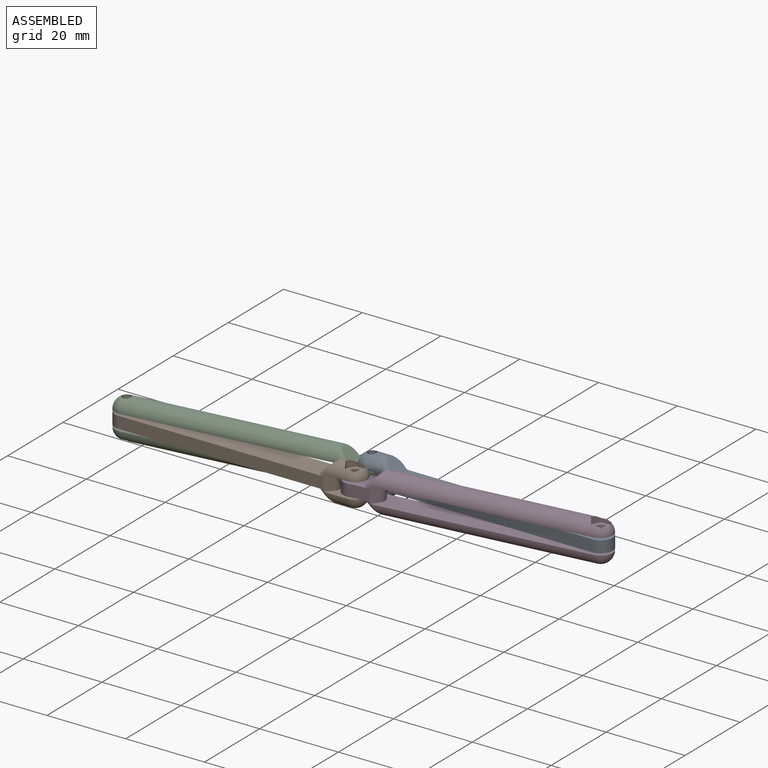
[diagram: assembled view]
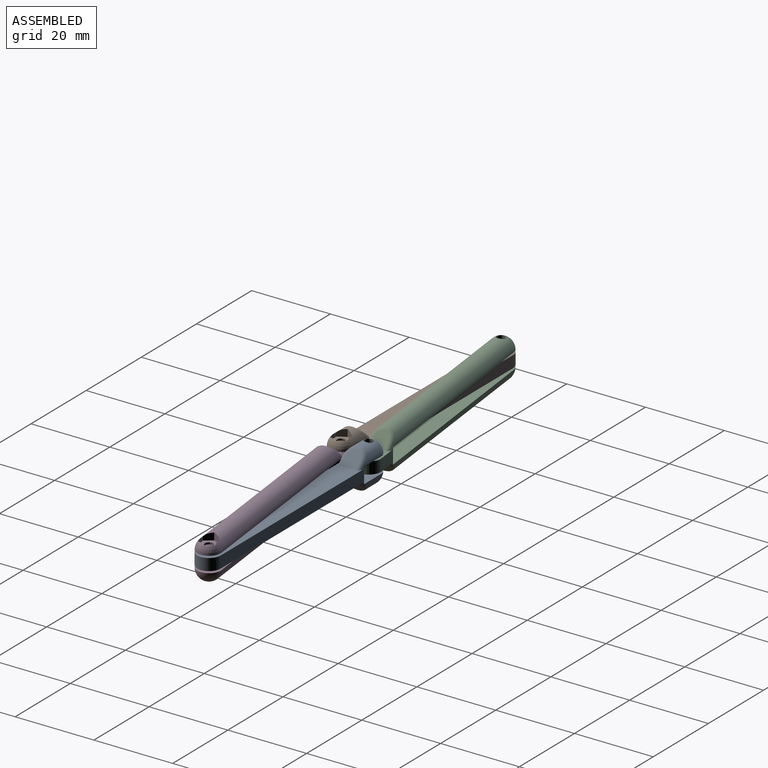
[diagram: assembled view, second angle]
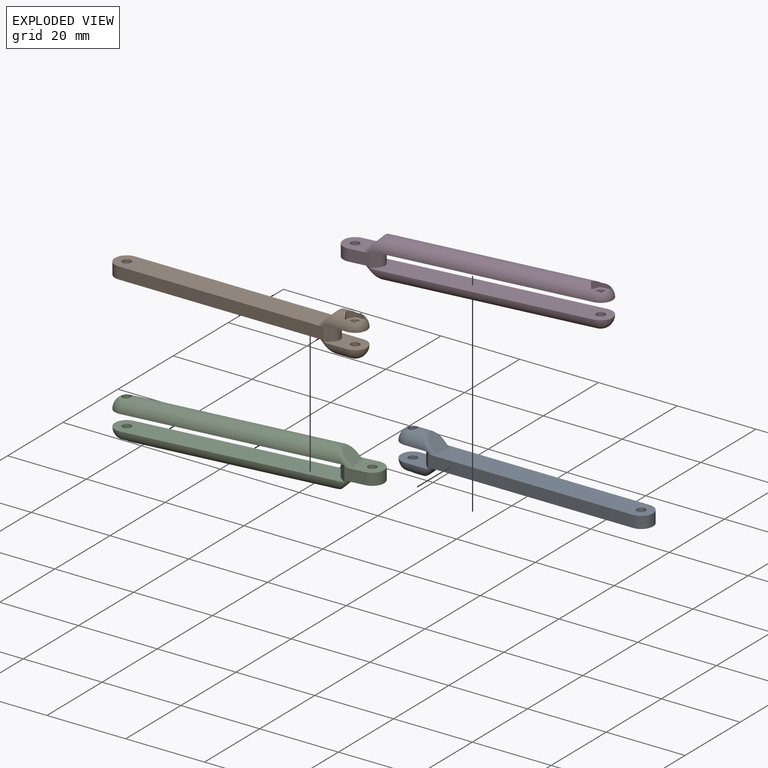
[diagram: exploded view]
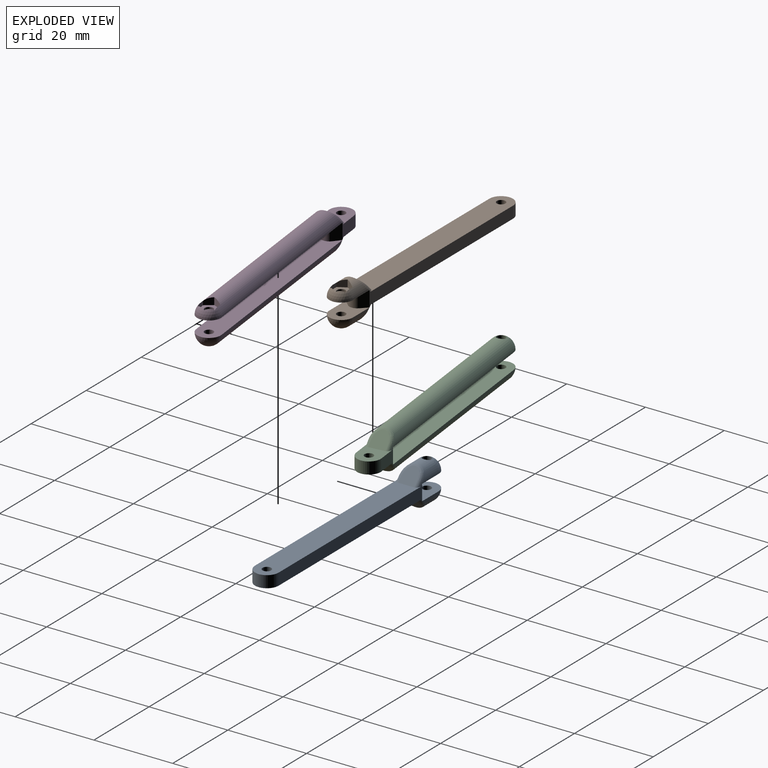
[diagram: exploded view, second angle]
ASSEMBLY  parts=4 mates=4
PART A: 32 faces, bbox 64x6x10 mm
  f0: cylinder r=1.1mm len=2.2mm, axis (0,0,-1), area 8.3mm2, adj f5,f16
  f1: plane 52x3.17mm, normal (0,1,0), area 156mm2, adj f3,f4,f7,f23,f27,f28
  f2: plane 52x3.17mm, normal (0,-1,0), area 156mm2, adj f3,f4,f7,f24,f25,f30
  f3: plane 54.91x6mm, normal (0,0,1), area 313.9mm2, adj f1,f2,f7,f9,f17,f25,f27
  f4: plane 54.91x6mm, normal (0,0,-1), area 313.9mm2, adj f1,f2,f7,f9,f18,f28,f30
  f5: plane 8.97x6mm, normal (0,0,1), area 38.2mm2, adj f0,f19,f20,f23,f24,f28,f30,f31
  f6: plane 8.97x6mm, normal (0,0,-1), area 38.2mm2, adj f8,f21,f22,f23,f24,f25,f27,f31
  f7: cylinder r=3mm len=6mm, axis (0,0,-1), area 28.3mm2, adj f1,f2,f3,f4
  f8: cylinder r=1.1mm len=3mm, axis (0,0,-1), area 19.7mm2, adj f6,f21,f22
  f9: cylinder r=1.1mm len=3mm, axis (0,0,-1), area 20.7mm2, adj f3,f4
  f10: plane 2.34x1.01mm, normal (0,1,0), area 2.2mm2, adj f11,f15,f16,f19,f20
  f11: plane 2.03x1.17mm, normal (0.87,0.5,0), area 2.1mm2, adj f10,f12,f16,f20
  f12: plane 2.03x1.17mm, normal (0.87,-0.5,0), area 2.1mm2, adj f11,f13,f16,f20
  f13: plane 2.34x1.01mm, normal (0,-1,0), area 2.2mm2, adj f12,f14,f16,f19,f20
  f14: plane 2.03x1.8mm, normal (-0.87,-0.5,0), area 3.6mm2, adj f13,f15,f16,f19
  f15: plane 2.03x1.8mm, normal (-0.87,0.5,0), area 3.6mm2, adj f10,f14,f16,f19
  f16: plane 4.68x4.05mm, normal (0,0,-1), area 10.4mm2, adj f0,f10,f11,f12,f13,f14,f15
  f17: plane 4x3.21mm, normal (0.71,0,0.71), area 15.7mm2, adj f3,f25,f26,f27
  f18: plane 4x3.21mm, normal (0.71,0,-0.71), area 15.7mm2, adj f4,f28,f29,f30
  f19: cylinder r=3mm len=6mm, axis (-1,0,0), area 33mm2, adj f5,f10,f13,f14,f15,f20,f29
  f20: sphere r=3mm, area 19.9mm2, adj f5,f10,f11,f12,f13,f19
  f21: cylinder r=3mm len=6mm, axis (1,0,0), area 38.7mm2, adj f6,f8,f22,f26
  f22: sphere r=3mm, area 26.3mm2, adj f6,f8,f21
  f23: plane 4x1.59mm, normal (-0.71,0.71,0), area 9mm2, adj f1,f5,f6,f27,f28,f31
  f24: plane 4x1.59mm, normal (-0.71,-0.71,0), area 9mm2, adj f2,f5,f6,f25,f30,f31
  f25: cylinder r=1mm len=1.91mm, axis (0.71,0,-0.71), area 2mm2, adj f2,f3,f6,f17,f24,f26
  f26: bspline ~6x3mm, area 10.1mm2, adj f17,f21,f25,f27
  f27: cylinder r=1mm len=1.91mm, axis (0.71,0,-0.71), area 2mm2, adj f1,f3,f6,f17,f23,f26
  f28: cylinder r=1mm len=1.91mm, axis (-0.71,0,-0.71), area 2mm2, adj f1,f4,f5,f18,f23,f29
  f29: bspline ~6x3mm, area 10.1mm2, adj f18,f19,f28,f30
  f30: cylinder r=1mm len=1.91mm, axis (-0.71,0,-0.71), area 2mm2, adj f2,f4,f5,f18,f24,f29
  f31: cylinder r=2mm len=4mm, axis (0,0,1), area 12.6mm2, adj f5,f6,f23,f24
PART B: same geometry as A
PART C: 32 faces, bbox 64x6x10 mm
  f0: cylinder r=1.1mm len=2.2mm, axis (0,0,-1), area 8.3mm2, adj f5,f16
  f1: plane 5x3.17mm, normal (0,1,0), area 15mm2, adj f3,f4,f7,f23,f27,f28
  f2: plane 5x3.17mm, normal (0,-1,0), area 15mm2, adj f3,f4,f7,f24,f25,f30
  f3: plane 7.91x6mm, normal (0,0,1), area 31.9mm2, adj f1,f2,f7,f9,f17,f25,f27
  f4: plane 7.91x6mm, normal (0,0,-1), area 31.9mm2, adj f1,f2,f7,f9,f18,f28,f30
  f5: plane 55.97x6mm, normal (0,0,1), area 320.2mm2, adj f0,f19,f20,f23,f24,f28,f30,f31
  f6: plane 55.97x6mm, normal (0,0,-1), area 320.2mm2, adj f8,f21,f22,f23,f24,f25,f27,f31
  f7: cylinder r=3mm len=6mm, axis (0,0,-1), area 28.3mm2, adj f1,f2,f3,f4
  f8: cylinder r=1.1mm len=3mm, axis (0,0,-1), area 19.7mm2, adj f6,f21,f22
  f9: cylinder r=1.1mm len=3mm, axis (0,0,-1), area 20.7mm2, adj f3,f4
  f10: plane 2.34x1.01mm, normal (0,1,0), area 2.2mm2, adj f11,f15,f16,f19,f20
  f11: plane 2.03x1.17mm, normal (0.87,0.5,0), area 2.1mm2, adj f10,f12,f16,f20
  f12: plane 2.03x1.17mm, normal (0.87,-0.5,0), area 2.1mm2, adj f11,f13,f16,f20
  f13: plane 2.34x1.01mm, normal (0,-1,0), area 2.2mm2, adj f12,f14,f16,f19,f20
  f14: plane 2.03x1.8mm, normal (-0.87,-0.5,0), area 3.6mm2, adj f13,f15,f16,f19
  f15: plane 2.03x1.8mm, normal (-0.87,0.5,0), area 3.6mm2, adj f10,f14,f16,f19
  f16: plane 4.68x4.05mm, normal (0,0,-1), area 10.4mm2, adj f0,f10,f11,f12,f13,f14,f15
  f17: plane 4x3.21mm, normal (0.71,0,0.71), area 15.7mm2, adj f3,f25,f26,f27
  f18: plane 4x3.21mm, normal (0.71,0,-0.71), area 15.7mm2, adj f4,f28,f29,f30
  f19: cylinder r=3mm len=52.59mm, axis (-1,0,0), area 475.9mm2, adj f5,f10,f13,f14,f15,f20,f29
  f20: sphere r=3mm, area 19.9mm2, adj f5,f10,f11,f12,f13,f19
  f21: cylinder r=3mm len=52.59mm, axis (1,0,0), area 481.7mm2, adj f6,f8,f22,f26
  f22: sphere r=3mm, area 26.3mm2, adj f6,f8,f21
  f23: plane 4x1.59mm, normal (-0.71,0.71,0), area 9mm2, adj f1,f5,f6,f27,f28,f31
  f24: plane 4x1.59mm, normal (-0.71,-0.71,0), area 9mm2, adj f2,f5,f6,f25,f30,f31
  f25: cylinder r=1mm len=1.91mm, axis (0.71,0,-0.71), area 2mm2, adj f2,f3,f6,f17,f24,f26
  f26: bspline ~6x3mm, area 10.1mm2, adj f17,f21,f25,f27
  f27: cylinder r=1mm len=1.91mm, axis (0.71,0,-0.71), area 2mm2, adj f1,f3,f6,f17,f23,f26
  f28: cylinder r=1mm len=1.91mm, axis (-0.71,0,-0.71), area 2mm2, adj f1,f4,f5,f18,f23,f29
  f29: bspline ~6x3mm, area 10.1mm2, adj f18,f19,f28,f30
  f30: cylinder r=1mm len=1.91mm, axis (-0.71,0,-0.71), area 2mm2, adj f2,f4,f5,f18,f24,f29
  f31: cylinder r=2mm len=4mm, axis (0,0,1), area 12.6mm2, adj f5,f6,f23,f24
PART D: same geometry as C
PLACE A t=(24.12,-3.61,-9.74)mm fixed
PLACE B rot(axis=(0,1,0),180deg) t=(-33.49,-10.37,0.26)mm
PLACE C rot(axis=(0,0,1),6.7deg) t=(-33.69,-6.99,-9.74)mm
PLACE D rot(axis=(0.06,-1,0),180deg) t=(24.31,-6.99,0.26)mm
MATE cylindrical B.f0 <-> D.f7  axis (0,0,1) through (-4.49,-10.37,-6.74)mm
MATE revolute D.f0 <-> A.f7  axis (0,0,-1) through (53.12,-3.61,-2.74)mm
MATE revolute C.f0 <-> B.f7  axis (0,0,1) through (-62.49,-10.37,-6.74)mm
MATE revolute C.f9 <-> A.f0  axis (0,0,-1) through (-4.88,-3.61,-6.24)mm
